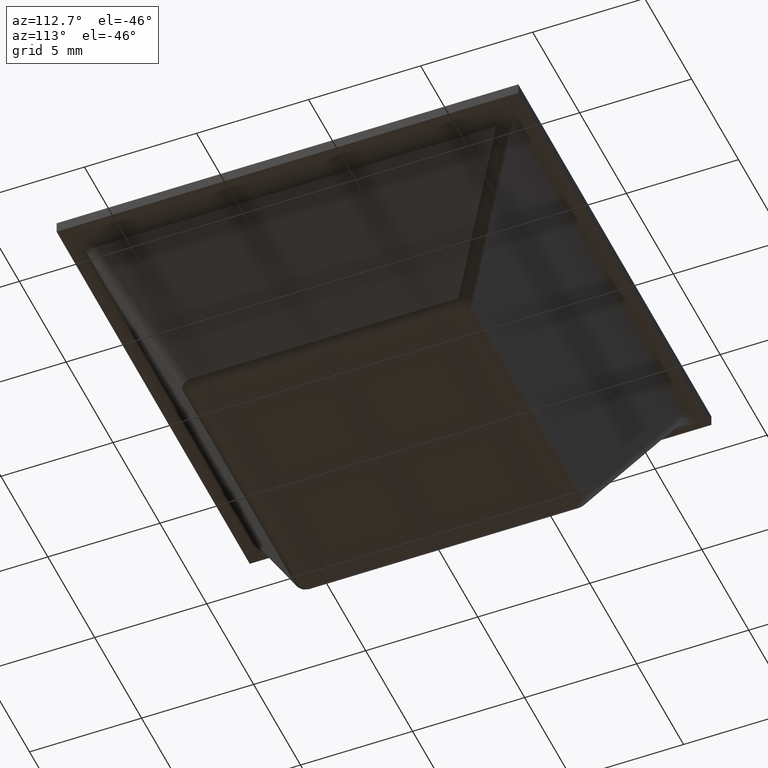
[diagram: clean part render]
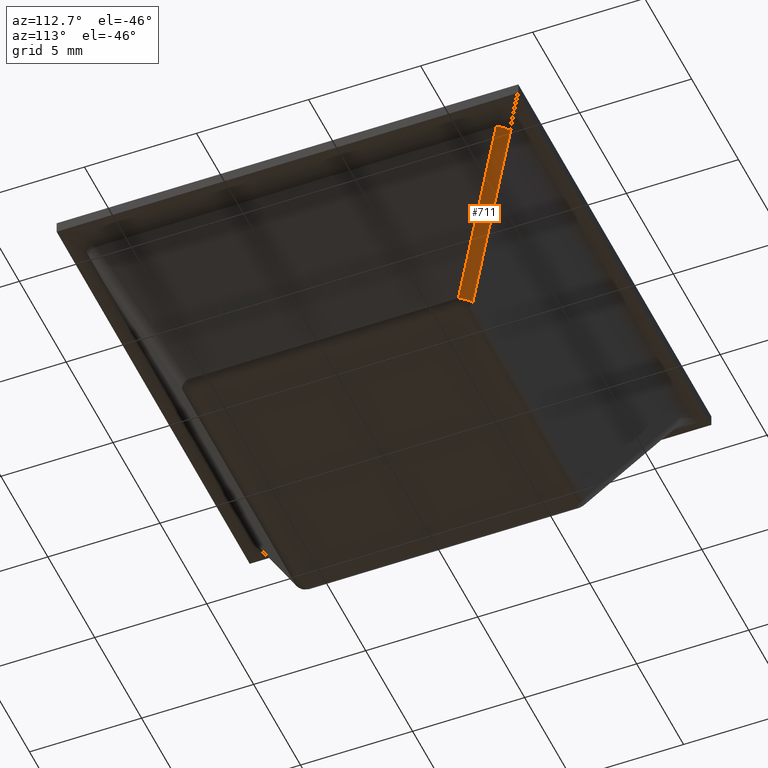
[diagram: same view with one face highlighted and labeled with its STEP entity id]
A machine part, auxiliary view. The second image highlights one B-rep face of the part: STEP entity #711.
In plain terms, the highlighted face is a freeform B-spline surface patch.
Its self-contained STEP definition (entity closure, byte-faithful):
#621=CARTESIAN_POINT('',(8.938393236846331,9.391547127593508,6.522618273625180));
#622=VERTEX_POINT('',#621);
#636=CARTESIAN_POINT('',(9.391547127593508,8.938393236846119,6.522618273625180));
#637=VERTEX_POINT('',#636);
#651=CARTESIAN_POINT('',(9.391547127593508,8.938393236846119,6.522618273625180));
#652=CARTESIAN_POINT('',(9.322876102070811,9.322876102070639,6.375352789195015));
#653=CARTESIAN_POINT('',(8.938393236846331,9.391547127593508,6.522618273625180));
#661=(BOUNDED_CURVE()B_SPLINE_CURVE(2,(#651,#652,#653),.UNSPECIFIED.,.F.,.U.)CURVE()GEOMETRIC_REPRESENTATION_ITEM()QUASI_UNIFORM_CURVE()RATIONAL_B_SPLINE_CURVE((1.0,0.767660799182282,1.0))REPRESENTATION_ITEM(''));
#662=EDGE_CURVE('',#637,#622,#661,.T.);
#667=CARTESIAN_POINT('',(9.466218331302168,8.999010402245478,6.683156600340205));
#668=CARTESIAN_POINT('',(6.412126900222639,5.944918971165950,0.133636614748822));
#669=CARTESIAN_POINT('',(9.402858347276670,9.413557837294663,6.519395196873433));
#670=CARTESIAN_POINT('',(6.348766916197144,6.359466406215135,-0.030124788717948));
#671=CARTESIAN_POINT('',(8.988659863423290,9.467685683747300,6.687298898318456));
#672=CARTESIAN_POINT('',(5.934568432343763,6.413594252667775,0.137778912727074));
#680=(BOUNDED_SURFACE()B_SPLINE_SURFACE(1,2,((#667,#669,#671),(#668,#670,#672)),.UNSPECIFIED.,.F.,.F.,.U.)B_SPLINE_SURFACE_WITH_KNOTS((2,2),(3,3),(0.0,7.845454797553023),(0.0,1.0),.UNSPECIFIED.)GEOMETRIC_REPRESENTATION_ITEM()RATIONAL_B_SPLINE_SURFACE(((1.0,0.743144825477394,1.0),(1.0,0.743144825477394,1.0)))REPRESENTATION_ITEM('')SURFACE());
#681=CARTESIAN_POINT('',(6.484618936203209,6.031465045455819,0.288690863187422));
#682=VERTEX_POINT('',#681);
#683=CARTESIAN_POINT('',(6.031465045455819,6.484618936203209,0.288690863187422));
#684=VERTEX_POINT('',#683);
#685=CARTESIAN_POINT('',(6.484618936203209,6.031465045455819,0.288690863187422));
#686=CARTESIAN_POINT('',(6.415947910680303,6.415947910680281,0.141425378756808));
#687=CARTESIAN_POINT('',(6.031465045455815,6.484618936203205,0.288690863187413));
#695=(BOUNDED_CURVE()B_SPLINE_CURVE(2,(#685,#686,#687),.UNSPECIFIED.,.F.,.U.)CURVE()GEOMETRIC_REPRESENTATION_ITEM()QUASI_UNIFORM_CURVE()RATIONAL_B_SPLINE_CURVE((1.0,0.767660799182153,1.0))REPRESENTATION_ITEM(''));
#696=EDGE_CURVE('',#682,#684,#695,.T.);
#697=ORIENTED_EDGE('',*,*,#696,.T.);
#698=CARTESIAN_POINT('',(8.938393236846331,9.391547127593508,6.522618273625180));
#699=CARTESIAN_POINT('',(6.031465045455819,6.484618936203209,0.288690863187422));
#700=QUASI_UNIFORM_CURVE('',1,(#698,#699),.UNSPECIFIED.,.F.,.U.);
#701=EDGE_CURVE('',#622,#684,#700,.T.);
#702=ORIENTED_EDGE('',*,*,#701,.F.);
#703=ORIENTED_EDGE('',*,*,#662,.F.);
#704=CARTESIAN_POINT('',(6.484618936203209,6.031465045455819,0.288690863187422));
#705=CARTESIAN_POINT('',(9.391547127593508,8.938393236846119,6.522618273625180));
#706=QUASI_UNIFORM_CURVE('',1,(#704,#705),.UNSPECIFIED.,.F.,.U.);
#707=EDGE_CURVE('',#682,#637,#706,.T.);
#708=ORIENTED_EDGE('',*,*,#707,.F.);
#709=EDGE_LOOP('',(#697,#702,#703,#708));
#710=FACE_OUTER_BOUND('',#709,.T.);
#711=ADVANCED_FACE('',(#710),#680,.T.);